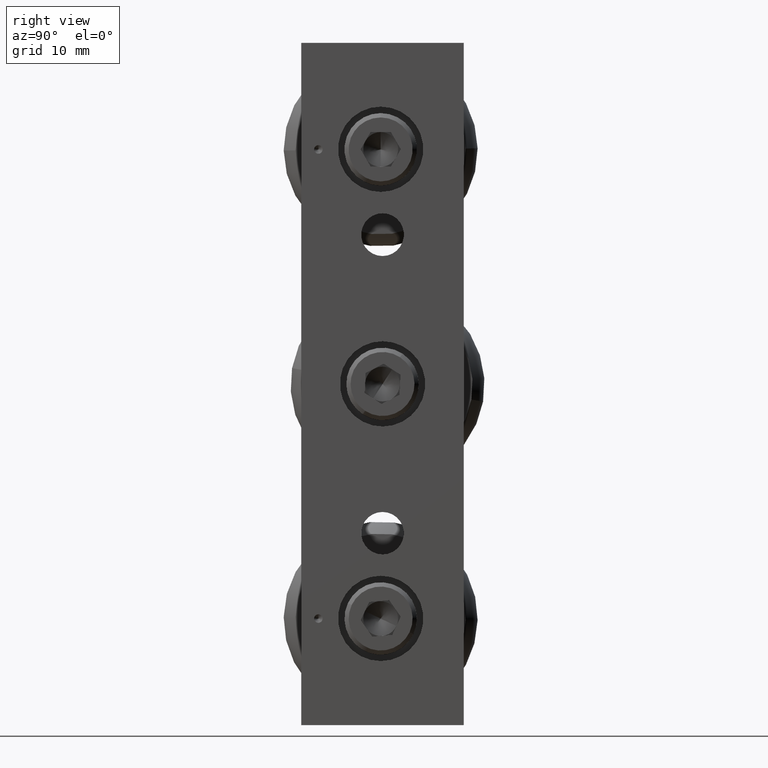
[diagram: clean part render]
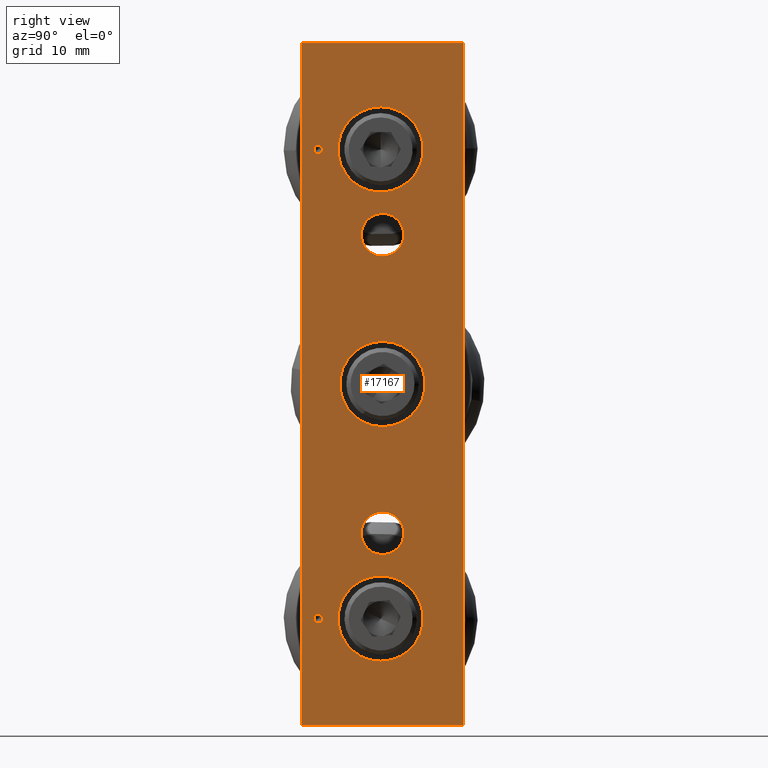
[diagram: same view with one face highlighted and labeled with its STEP entity id]
A machine part, right view. The second image highlights one B-rep face of the part: STEP entity #17167.
In plain terms, the highlighted planar face has unit normal (1, -0, 0).
Its self-contained STEP definition (entity closure, byte-faithful):
#203 = CARTESIAN_POINT ( 'NONE',  ( 1.043307086340017342, -0.2962598425196846796, -3.444881889763779625 ) ) ;
#338 = VERTEX_POINT ( 'NONE', #22523 ) ;
#523 = CIRCLE ( 'NONE', #13782, 0.09842519685039378963 ) ;
#623 = CARTESIAN_POINT ( 'NONE',  ( 1.043307086340017342, -0.008661417322834229215, -3.641732283464567121 ) ) ;
#698 = LINE ( 'NONE', #15389, #51474 ) ;
#818 = DIRECTION ( 'NONE',  ( -1.000000000000000000, -4.122974739858164500E-35, -5.538395266801810043E-17 ) ) ;
#846 = ORIENTED_EDGE ( 'NONE', *, *, #26414, .F. ) ;
#1002 = DIRECTION ( 'NONE',  ( 0.000000000000000000, 2.775557561562891351E-17, 1.000000000000000000 ) ) ;
#1111 = CARTESIAN_POINT ( 'NONE',  ( 1.043307086340017342, -0.2962598425196845686, -1.279527559055118280 ) ) ;
#1979 = EDGE_CURVE ( 'NONE', #17711, #44310, #5116, .T. ) ;
#1989 = VERTEX_POINT ( 'NONE', #8689 ) ;
#2316 = EDGE_LOOP ( 'NONE', ( #49722, #62140 ) ) ;
#3263 = ORIENTED_EDGE ( 'NONE', *, *, #47633, .T. ) ;
#3524 = EDGE_CURVE ( 'NONE', #43820, #1989, #16614, .T. ) ;
#3578 = EDGE_LOOP ( 'NONE', ( #38567, #49642 ) ) ;
#5116 = CIRCLE ( 'NONE', #25509, 0.01968503937007875723 ) ;
#5251 = DIRECTION ( 'NONE',  ( 0.000000000000000000, 0.000000000000000000, -1.000000000000000000 ) ) ;
#5484 = DIRECTION ( 'NONE',  ( 0.000000000000000000, 2.775557561562891351E-17, 1.000000000000000000 ) ) ;
#5498 = AXIS2_PLACEMENT_3D ( 'NONE', #203, #29254, #34349 ) ;
#6227 = VECTOR ( 'NONE', #38648, 39.37007874015748143 ) ;
#6478 = LINE ( 'NONE', #45863, #33417 ) ;
#7134 = VERTEX_POINT ( 'NONE', #19860 ) ;
#7737 = VERTEX_POINT ( 'NONE', #40782 ) ;
#7865 = VERTEX_POINT ( 'NONE', #24915 ) ;
#7905 = CARTESIAN_POINT ( 'NONE',  ( 1.043307086340017342, 0.3750000000000004996, -3.937007874015748143 ) ) ;
#8005 = EDGE_LOOP ( 'NONE', ( #53179, #11856 ) ) ;
#8300 = DIRECTION ( 'NONE',  ( 0.000000000000000000, 2.710505431213758620E-17, 1.000000000000000000 ) ) ;
#8689 = CARTESIAN_POINT ( 'NONE',  ( 1.043307086340017342, 2.775222771005836559E-16, -1.771653543307086576 ) ) ;
#8885 = CIRCLE ( 'NONE', #33376, 0.09842519685039378963 ) ;
#9157 = PLANE ( 'NONE',  #25418 ) ;
#9282 = VERTEX_POINT ( 'NONE', #51944 ) ;
#9656 = CIRCLE ( 'NONE', #42396, 0.1968503937007873017 ) ;
#9911 = CARTESIAN_POINT ( 'NONE',  ( 1.043307086340017342, 2.540618634107765385E-16, -3.051181102362204633 ) ) ;
#10357 = EDGE_CURVE ( 'NONE', #28666, #60308, #49522, .T. ) ;
#10927 = VERTEX_POINT ( 'NONE', #37506 ) ;
#11856 = ORIENTED_EDGE ( 'NONE', *, *, #60111, .F. ) ;
#12434 = CARTESIAN_POINT ( 'NONE',  ( 1.043307086340017342, 0.3750000000000006661, -0.7874015748031495399 ) ) ;
#12598 = ORIENTED_EDGE ( 'NONE', *, *, #1979, .T. ) ;
#13204 = DIRECTION ( 'NONE',  ( -1.000000000000000000, -4.122974739858164500E-35, -5.538395266801810043E-17 ) ) ;
#13230 = EDGE_LOOP ( 'NONE', ( #52586, #28513 ) ) ;
#13301 = VECTOR ( 'NONE', #36167, 39.37007874015748143 ) ;
#13350 = FACE_BOUND ( 'NONE', #2316, .T. ) ;
#13594 = EDGE_CURVE ( 'NONE', #338, #50201, #33490, .T. ) ;
#13782 = AXIS2_PLACEMENT_3D ( 'NONE', #45949, #35988, #48655 ) ;
#14245 = DIRECTION ( 'NONE',  ( 1.000000000000000000, 4.122974739858164500E-35, 5.538395266801810043E-17 ) ) ;
#15389 = CARTESIAN_POINT ( 'NONE',  ( 1.043307086340017342, -0.3749999999999996669, -3.937007874015748143 ) ) ;
#16614 = CIRCLE ( 'NONE', #21717, 0.09842519685039378963 ) ;
#16666 = CARTESIAN_POINT ( 'NONE',  ( 1.043307086340017342, 0.3750000000000004996, -3.937007874015748143 ) ) ;
#17167 = ADVANCED_FACE ( 'NONE', ( #56954, #42468, #33124, #62666, #53075, #62958, #27730, #13350 ), #9157, .T. ) ;
#17711 = VERTEX_POINT ( 'NONE', #31822 ) ;
#18006 = DIRECTION ( 'NONE',  ( 1.000000000000000000, 4.122974739858164500E-35, 5.538395266801810043E-17 ) ) ;
#18405 = CARTESIAN_POINT ( 'NONE',  ( 1.043307086340017342, 2.540618634107765385E-16, -3.051181102362204633 ) ) ;
#18433 = DIRECTION ( 'NONE',  ( 1.000000000000000000, 4.122974739858164500E-35, 5.538395266801810043E-17 ) ) ;
#18618 = CIRCLE ( 'NONE', #54497, 0.1968503937007875793 ) ;
#19860 = CARTESIAN_POINT ( 'NONE',  ( 1.043307086340017342, -0.008661417322834194521, -3.248031496062991685 ) ) ;
#20080 = CARTESIAN_POINT ( 'NONE',  ( 1.043307086340017342, -0.2962598425196845686, -1.259842519685039353 ) ) ;
#20314 = CARTESIAN_POINT ( 'NONE',  ( 1.043307086340017342, 2.950395833157404375E-16, -1.574803149606299080 ) ) ;
#21004 = CIRCLE ( 'NONE', #61984, 0.09842519685039378963 ) ;
#21141 = DIRECTION ( 'NONE',  ( 0.000000000000000000, 2.775557561562891351E-17, 1.000000000000000000 ) ) ;
#21717 = AXIS2_PLACEMENT_3D ( 'NONE', #49782, #55558, #36249 ) ;
#21832 = AXIS2_PLACEMENT_3D ( 'NONE', #23543, #18433, #24161 ) ;
#22322 = CARTESIAN_POINT ( 'NONE',  ( 1.043307086340017342, -0.008661417322834135540, -1.082677165354330784 ) ) ;
#22523 = CARTESIAN_POINT ( 'NONE',  ( 1.043307086340017342, -0.3749999999999995559, -0.7874015748031495399 ) ) ;
#23543 = CARTESIAN_POINT ( 'NONE',  ( 1.043307086340017342, -0.008661417322834140745, -1.279527559055118280 ) ) ;
#23664 = EDGE_LOOP ( 'NONE', ( #54850, #846, #54787, #3263 ) ) ;
#24161 = DIRECTION ( 'NONE',  ( 0.000000000000000000, 2.710505431213760777E-17, 1.000000000000000000 ) ) ;
#24625 = CARTESIAN_POINT ( 'NONE',  ( 1.043307086340017342, 4.780733988912460139E-16, -2.362204724409448620 ) ) ;
#24915 = CARTESIAN_POINT ( 'NONE',  ( 1.043307086340017342, 0.3750000000000004996, -3.937007874015748143 ) ) ;
#25257 = DIRECTION ( 'NONE',  ( 1.000000000000000000, 4.122974739858164500E-35, 5.538395266801810043E-17 ) ) ;
#25418 = AXIS2_PLACEMENT_3D ( 'NONE', #7905, #37346, #47667 ) ;
#25509 = AXIS2_PLACEMENT_3D ( 'NONE', #58034, #13204, #43262 ) ;
#25675 = AXIS2_PLACEMENT_3D ( 'NONE', #62550, #18006, #43295 ) ;
#26414 = EDGE_CURVE ( 'NONE', #7737, #338, #698, .T. ) ;
#27244 = AXIS2_PLACEMENT_3D ( 'NONE', #59119, #33768, #8300 ) ;
#27724 = DIRECTION ( 'NONE',  ( 0.000000000000000000, 2.710505431213758620E-17, 1.000000000000000000 ) ) ;
#27730 = FACE_OUTER_BOUND ( 'NONE', #23664, .T. ) ;
#27878 = CARTESIAN_POINT ( 'NONE',  ( 1.043307086340017342, 2.392764051892839906E-16, -3.149606299212598604 ) ) ;
#28513 = ORIENTED_EDGE ( 'NONE', *, *, #47037, .F. ) ;
#28666 = VERTEX_POINT ( 'NONE', #22322 ) ;
#29007 = EDGE_CURVE ( 'NONE', #31520, #56092, #32729, .T. ) ;
#29254 = DIRECTION ( 'NONE',  ( -1.000000000000000000, -4.122974739858164500E-35, -5.538395266801810043E-17 ) ) ;
#29268 = CIRCLE ( 'NONE', #27244, 0.1968503937007875793 ) ;
#29880 = AXIS2_PLACEMENT_3D ( 'NONE', #1111, #44281, #5251 ) ;
#29984 = CIRCLE ( 'NONE', #5498, 0.01968503937007875723 ) ;
#30068 = DIRECTION ( 'NONE',  ( 0.000000000000000000, 2.775557561562895049E-17, 1.000000000000000000 ) ) ;
#31520 = VERTEX_POINT ( 'NONE', #46000 ) ;
#31537 = CARTESIAN_POINT ( 'NONE',  ( 1.043307086340017342, -0.2962598425196846796, -3.425196850393700476 ) ) ;
#31822 = CARTESIAN_POINT ( 'NONE',  ( 1.043307086340017342, -0.2962598425196845686, -1.299212598425196985 ) ) ;
#31876 = CARTESIAN_POINT ( 'NONE',  ( 1.043307086340017342, -0.008661417322834199725, -3.444881889763779625 ) ) ;
#32729 = CIRCLE ( 'NONE', #46104, 0.01968503937007875723 ) ;
#33124 = FACE_BOUND ( 'NONE', #8005, .T. ) ;
#33376 = AXIS2_PLACEMENT_3D ( 'NONE', #9911, #53833, #1002 ) ;
#33417 = VECTOR ( 'NONE', #21141, 39.37007874015748143 ) ;
#33490 = LINE ( 'NONE', #57625, #6227 ) ;
#33728 = DIRECTION ( 'NONE',  ( 0.000000000000000000, 2.775557561562891351E-17, 1.000000000000000000 ) ) ;
#33768 = DIRECTION ( 'NONE',  ( 1.000000000000000000, 4.122974739858164500E-35, 5.538395266801810043E-17 ) ) ;
#34349 = DIRECTION ( 'NONE',  ( 0.000000000000000000, 0.000000000000000000, -1.000000000000000000 ) ) ;
#34580 = ORIENTED_EDGE ( 'NONE', *, *, #40912, .T. ) ;
#34874 = CARTESIAN_POINT ( 'NONE',  ( 1.043307086340017342, 4.780733988912460139E-16, -2.362204724409448620 ) ) ;
#35988 = DIRECTION ( 'NONE',  ( 1.000000000000000000, 4.122974739858164500E-35, 5.538395266801810043E-17 ) ) ;
#36167 = DIRECTION ( 'NONE',  ( -5.551115123125781470E-17, 1.000000000000000000, -2.860440887286700275E-17 ) ) ;
#36249 = DIRECTION ( 'NONE',  ( 0.000000000000000000, 2.775557561562891351E-17, 1.000000000000000000 ) ) ;
#37080 = ORIENTED_EDGE ( 'NONE', *, *, #46075, .F. ) ;
#37346 = DIRECTION ( 'NONE',  ( 1.000000000000000000, -1.495983738771007353E-33, 4.152188978120994615E-50 ) ) ;
#37506 = CARTESIAN_POINT ( 'NONE',  ( 1.043307086340017342, 2.567937114044407721E-16, -2.952755905511811108 ) ) ;
#37719 = EDGE_CURVE ( 'NONE', #7737, #7865, #56734, .T. ) ;
#38567 = ORIENTED_EDGE ( 'NONE', *, *, #10357, .F. ) ;
#38648 = DIRECTION ( 'NONE',  ( -5.551115123125781470E-17, 1.000000000000000000, -2.860440887286700275E-17 ) ) ;
#40513 = EDGE_CURVE ( 'NONE', #7134, #54939, #18618, .T. ) ;
#40782 = CARTESIAN_POINT ( 'NONE',  ( 1.043307086340017342, -0.3749999999999996669, -3.937007874015748143 ) ) ;
#40912 = EDGE_CURVE ( 'NONE', #44310, #17711, #46331, .T. ) ;
#42396 = AXIS2_PLACEMENT_3D ( 'NONE', #24625, #25257, #49996 ) ;
#42468 = FACE_BOUND ( 'NONE', #3578, .T. ) ;
#43036 = CARTESIAN_POINT ( 'NONE',  ( 1.043307086340017342, -0.008661417322834170235, -1.476377952755905554 ) ) ;
#43225 = VERTEX_POINT ( 'NONE', #27878 ) ;
#43262 = DIRECTION ( 'NONE',  ( 0.000000000000000000, 0.000000000000000000, -1.000000000000000000 ) ) ;
#43295 = DIRECTION ( 'NONE',  ( 0.000000000000000000, 2.710505431213760777E-17, 1.000000000000000000 ) ) ;
#43820 = VERTEX_POINT ( 'NONE', #20314 ) ;
#44281 = DIRECTION ( 'NONE',  ( -1.000000000000000000, -4.122974739858164500E-35, -5.538395266801810043E-17 ) ) ;
#44310 = VERTEX_POINT ( 'NONE', #20080 ) ;
#44781 = EDGE_CURVE ( 'NONE', #43225, #10927, #21004, .T. ) ;
#45248 = EDGE_LOOP ( 'NONE', ( #37080, #63084 ) ) ;
#45863 = CARTESIAN_POINT ( 'NONE',  ( 1.043307086340017342, 0.3750000000000004996, -3.937007874015748143 ) ) ;
#45949 = CARTESIAN_POINT ( 'NONE',  ( 1.043307086340017342, 2.923077353220762038E-16, -1.673228346456692828 ) ) ;
#46000 = CARTESIAN_POINT ( 'NONE',  ( 1.043307086340017342, -0.2962598425196846796, -3.464566929133858331 ) ) ;
#46075 = EDGE_CURVE ( 'NONE', #10927, #43225, #8885, .T. ) ;
#46104 = AXIS2_PLACEMENT_3D ( 'NONE', #49178, #818, #59700 ) ;
#46331 = CIRCLE ( 'NONE', #29880, 0.01968503937007875723 ) ;
#47037 = EDGE_CURVE ( 'NONE', #9282, #58297, #63048, .T. ) ;
#47565 = ORIENTED_EDGE ( 'NONE', *, *, #3524, .F. ) ;
#47633 = EDGE_CURVE ( 'NONE', #7865, #50201, #6478, .T. ) ;
#47667 = DIRECTION ( 'NONE',  ( 0.000000000000000000, 2.775557561562891351E-17, 1.000000000000000000 ) ) ;
#48655 = DIRECTION ( 'NONE',  ( 0.000000000000000000, 2.775557561562891351E-17, 1.000000000000000000 ) ) ;
#49178 = CARTESIAN_POINT ( 'NONE',  ( 1.043307086340017342, -0.2962598425196846796, -3.444881889763779625 ) ) ;
#49522 = CIRCLE ( 'NONE', #21832, 0.1968503937007874405 ) ;
#49642 = ORIENTED_EDGE ( 'NONE', *, *, #51373, .F. ) ;
#49722 = ORIENTED_EDGE ( 'NONE', *, *, #29007, .T. ) ;
#49782 = CARTESIAN_POINT ( 'NONE',  ( 1.043307086340017342, 2.923077353220762038E-16, -1.673228346456692828 ) ) ;
#49996 = DIRECTION ( 'NONE',  ( 0.000000000000000000, 2.775557561562895049E-17, 1.000000000000000000 ) ) ;
#50201 = VERTEX_POINT ( 'NONE', #12434 ) ;
#50482 = CARTESIAN_POINT ( 'NONE',  ( 1.043307086340017342, 4.835370948785745798E-16, -2.165354330708661568 ) ) ;
#51322 = EDGE_LOOP ( 'NONE', ( #12598, #34580 ) ) ;
#51373 = EDGE_CURVE ( 'NONE', #60308, #28666, #56424, .T. ) ;
#51474 = VECTOR ( 'NONE', #5484, 39.37007874015748143 ) ;
#51500 = DIRECTION ( 'NONE',  ( 1.000000000000000000, 4.122974739858164500E-35, 5.538395266801810043E-17 ) ) ;
#51944 = CARTESIAN_POINT ( 'NONE',  ( 1.043307086340017342, 4.485024824482609182E-16, -2.559055118110236560 ) ) ;
#52586 = ORIENTED_EDGE ( 'NONE', *, *, #56865, .F. ) ;
#53075 = FACE_BOUND ( 'NONE', #53293, .T. ) ;
#53179 = ORIENTED_EDGE ( 'NONE', *, *, #40513, .F. ) ;
#53293 = EDGE_LOOP ( 'NONE', ( #47565, #61509 ) ) ;
#53833 = DIRECTION ( 'NONE',  ( 1.000000000000000000, 4.122974739858164500E-35, 5.538395266801810043E-17 ) ) ;
#54497 = AXIS2_PLACEMENT_3D ( 'NONE', #31876, #51500, #27724 ) ;
#54787 = ORIENTED_EDGE ( 'NONE', *, *, #37719, .T. ) ;
#54818 = DIRECTION ( 'NONE',  ( 1.000000000000000000, 4.122974739858164500E-35, 5.538395266801810043E-17 ) ) ;
#54850 = ORIENTED_EDGE ( 'NONE', *, *, #13594, .F. ) ;
#54939 = VERTEX_POINT ( 'NONE', #623 ) ;
#55558 = DIRECTION ( 'NONE',  ( 1.000000000000000000, 4.122974739858164500E-35, 5.538395266801810043E-17 ) ) ;
#56092 = VERTEX_POINT ( 'NONE', #31537 ) ;
#56212 = EDGE_CURVE ( 'NONE', #56092, #31520, #29984, .T. ) ;
#56424 = CIRCLE ( 'NONE', #25675, 0.1968503937007874405 ) ;
#56734 = LINE ( 'NONE', #16666, #13301 ) ;
#56865 = EDGE_CURVE ( 'NONE', #58297, #9282, #9656, .T. ) ;
#56954 = FACE_BOUND ( 'NONE', #51322, .T. ) ;
#57171 = EDGE_CURVE ( 'NONE', #1989, #43820, #523, .T. ) ;
#57625 = CARTESIAN_POINT ( 'NONE',  ( 1.043307086340017342, 0.3750000000000006661, -0.7874015748031495399 ) ) ;
#57967 = AXIS2_PLACEMENT_3D ( 'NONE', #34874, #54818, #30068 ) ;
#58034 = CARTESIAN_POINT ( 'NONE',  ( 1.043307086340017342, -0.2962598425196845686, -1.279527559055118280 ) ) ;
#58297 = VERTEX_POINT ( 'NONE', #50482 ) ;
#59119 = CARTESIAN_POINT ( 'NONE',  ( 1.043307086340017342, -0.008661417322834199725, -3.444881889763779625 ) ) ;
#59700 = DIRECTION ( 'NONE',  ( 0.000000000000000000, 0.000000000000000000, -1.000000000000000000 ) ) ;
#60111 = EDGE_CURVE ( 'NONE', #54939, #7134, #29268, .T. ) ;
#60308 = VERTEX_POINT ( 'NONE', #43036 ) ;
#61509 = ORIENTED_EDGE ( 'NONE', *, *, #57171, .F. ) ;
#61984 = AXIS2_PLACEMENT_3D ( 'NONE', #18405, #14245, #33728 ) ;
#62140 = ORIENTED_EDGE ( 'NONE', *, *, #56212, .T. ) ;
#62550 = CARTESIAN_POINT ( 'NONE',  ( 1.043307086340017342, -0.008661417322834140745, -1.279527559055118280 ) ) ;
#62666 = FACE_BOUND ( 'NONE', #13230, .T. ) ;
#62958 = FACE_BOUND ( 'NONE', #45248, .T. ) ;
#63048 = CIRCLE ( 'NONE', #57967, 0.1968503937007873017 ) ;
#63084 = ORIENTED_EDGE ( 'NONE', *, *, #44781, .F. ) ;